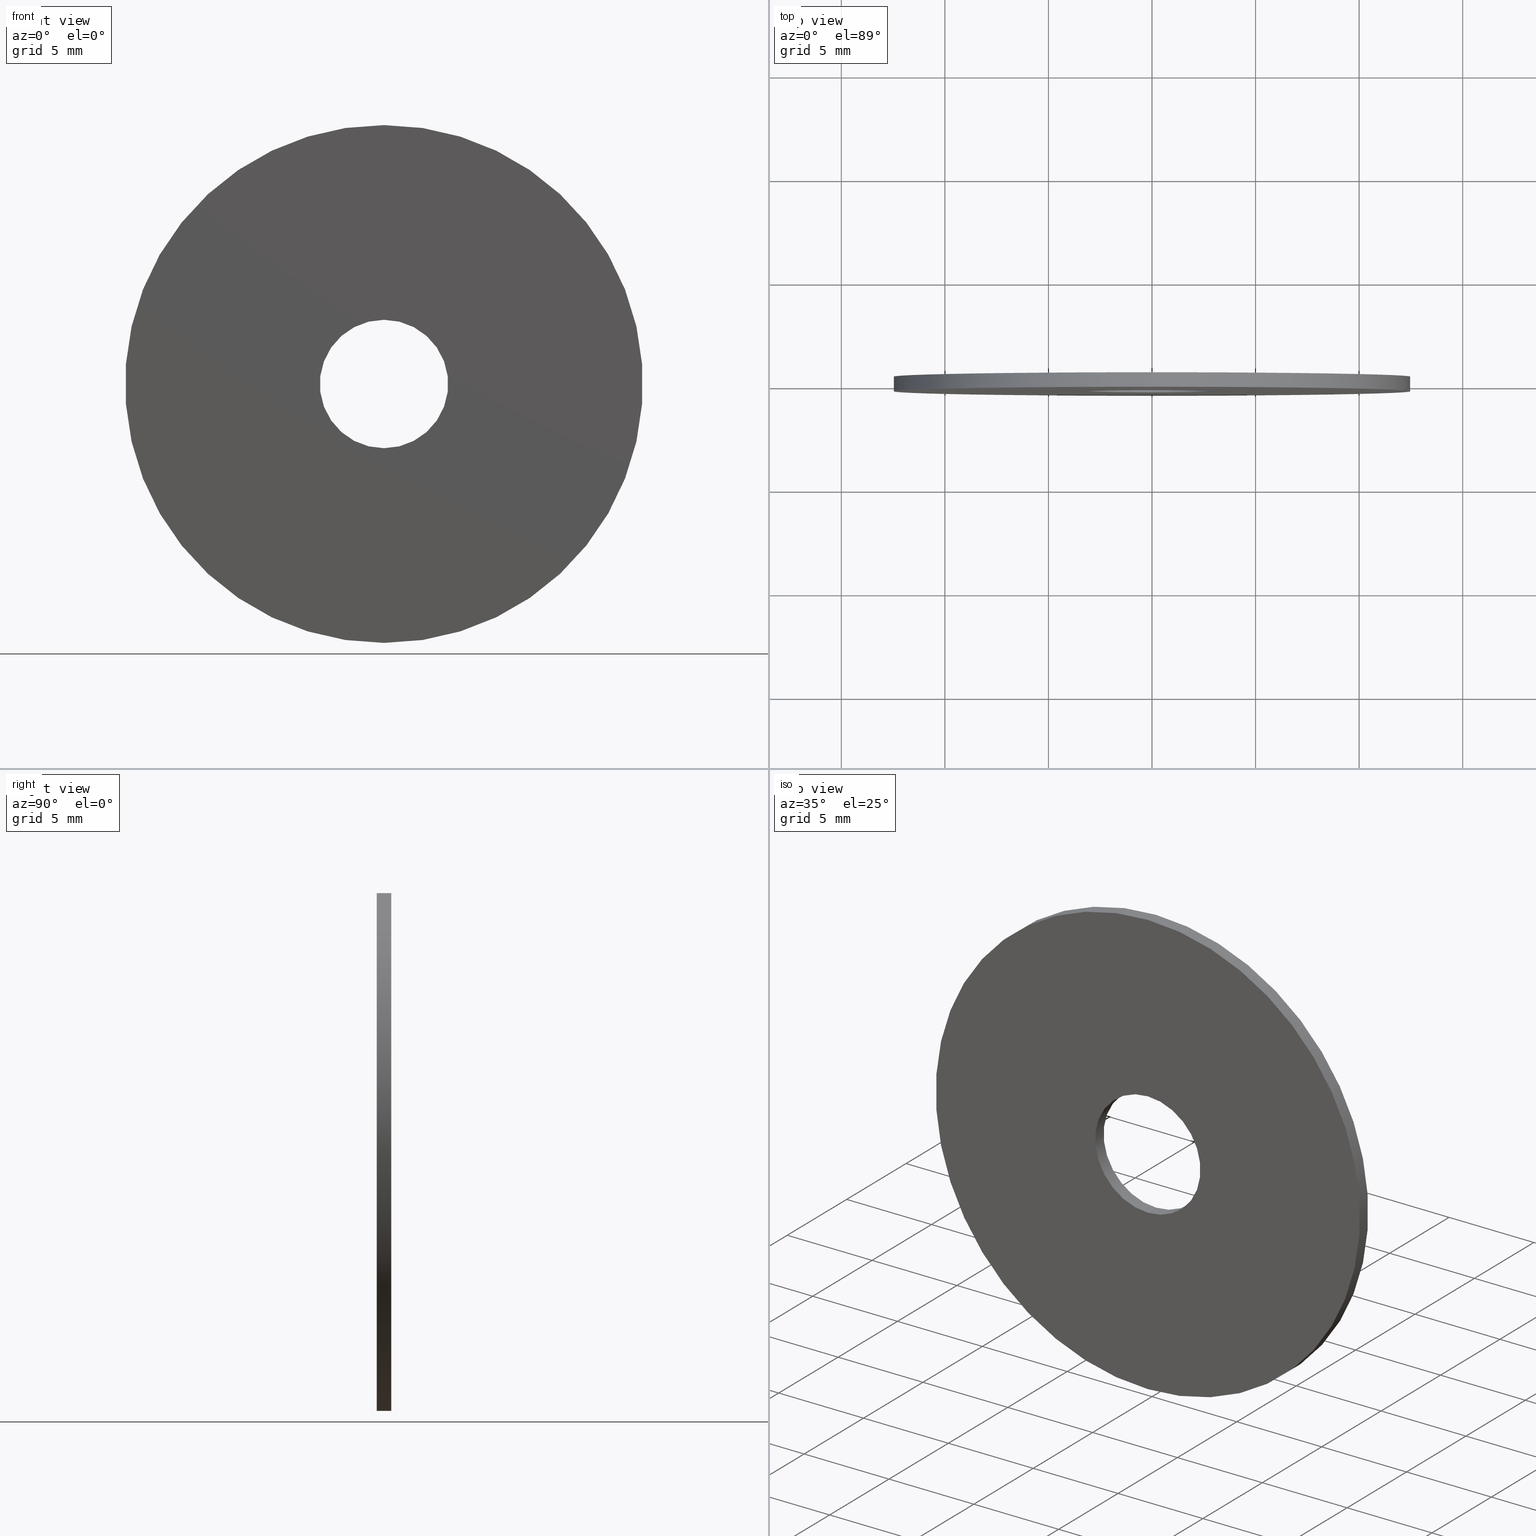
[diagram: canonical four-view strip — front | top / right | iso, engineering-drawing reading convention]
A machine part, canonical four-view strip (front | top / right | iso — engineering-drawing reading convention). The complete STEP part file that produces these views, byte-faithful:
ISO-10303-21;
HEADER;
FILE_DESCRIPTION (( 'STEP AP203' ),
    '1' );
FILE_NAME ('1.4.2.134-ZGH-25-DK0.7.STEP',
    '2024-04-06T05:14:54',
    ( '' ),
    ( '' ),
    'SwSTEP 2.0',
    'SolidWorks 2021',
    '' );
FILE_SCHEMA (( 'CONFIG_CONTROL_DESIGN' ));
ENDSEC;

DATA;
#1 = VERTEX_POINT ( 'NONE', #26 ) ;
#2 = APPROVAL_DATE_TIME ( #3, #199 ) ;
#3 = DATE_AND_TIME ( #105, #113 ) ;
#4 = AXIS2_PLACEMENT_3D ( 'NONE', #33, #182, #120 ) ;
#5 = PERSON_AND_ORGANIZATION ( #237, #140 ) ;
#6 = DIRECTION ( 'NONE',  ( 0.000000000000000000, 0.000000000000000000, 1.000000000000000000 ) ) ;
#7 = EDGE_LOOP ( 'NONE', ( #164, #124, #72, #11 ) ) ;
#8 = EDGE_CURVE ( 'NONE', #189, #126, #82, .T. ) ;
#9 = VERTEX_POINT ( 'NONE', #239 ) ;
#10 = ORIENTED_EDGE ( 'NONE', *, *, #85, .T. ) ;
#11 = ORIENTED_EDGE ( 'NONE', *, *, #95, .F. ) ;
#12 = PRODUCT_DEFINITION_FORMATION_WITH_SPECIFIED_SOURCE ( '�κ�', '', #222, .NOT_KNOWN. ) ;
#13 = DIRECTION ( 'NONE',  ( 0.000000000000000000, 1.000000000000000000, 0.000000000000000000 ) ) ;
#14 = CARTESIAN_POINT ( 'NONE',  ( 0.000000000000000000, 0.3499999999999999778, -12.50000000000000000 ) ) ;
#15 = APPROVAL_PERSON_ORGANIZATION ( #127, #226, #170 ) ;
#16 = DIRECTION ( 'NONE',  ( -0.000000000000000000, -1.000000000000000000, -0.000000000000000000 ) ) ;
#17 = APPROVAL_PERSON_ORGANIZATION ( #22, #199, #190 ) ;
#18 = DATE_AND_TIME ( #110, #118 ) ;
#19 = CC_DESIGN_DATE_AND_TIME_ASSIGNMENT ( #232, #172, ( #145 ) ) ;
#20 = AXIS2_PLACEMENT_3D ( 'NONE', #30, #13, #223 ) ;
#21 = EDGE_LOOP ( 'NONE', ( #76, #186, #97, #176 ) ) ;
#22 = PERSON_AND_ORGANIZATION ( #237, #140 ) ;
#23 = CARTESIAN_POINT ( 'NONE',  ( 1.530808498934191521E-15, -0.3499999999999999778, 12.50000000000000000 ) ) ;
#24 = DIRECTION ( 'NONE',  ( 0.000000000000000000, 0.000000000000000000, 1.000000000000000000 ) ) ;
#25 = PRODUCT_DEFINITION_SHAPE ( 'NONE', 'NONE',  #145 ) ;
#26 = CARTESIAN_POINT ( 'NONE',  ( 0.000000000000000000, -0.3499999999999999778, -12.50000000000000000 ) ) ;
#27 = CARTESIAN_POINT ( 'NONE',  ( 0.000000000000000000, -0.3499999999999999778, 0.000000000000000000 ) ) ;
#28 = FACE_OUTER_BOUND ( 'NONE', #69, .T. ) ;
#29 = AXIS2_PLACEMENT_3D ( 'NONE', #78, #204, #49 ) ;
#30 = CARTESIAN_POINT ( 'NONE',  ( 0.000000000000000000, 0.3499999999999999778, 0.000000000000000000 ) ) ;
#31 = DIRECTION ( 'NONE',  ( -0.000000000000000000, -1.000000000000000000, -0.000000000000000000 ) ) ;
#32 = EDGE_CURVE ( 'NONE', #216, #123, #84, .T. ) ;
#33 = CARTESIAN_POINT ( 'NONE',  ( 0.000000000000000000, 0.3499999999999999778, 0.000000000000000000 ) ) ;
#34 =( NAMED_UNIT ( * ) PLANE_ANGLE_UNIT ( ) SI_UNIT ( $, .RADIAN. ) );
#35 = AXIS2_PLACEMENT_3D ( 'NONE', #161, #65, #125 ) ;
#36 = CC_DESIGN_DATE_AND_TIME_ASSIGNMENT ( #18, #167, ( #234 ) ) ;
#37 = CARTESIAN_POINT ( 'NONE',  ( 0.000000000000000000, -0.3499999999999999778, 0.000000000000000000 ) ) ;
#38 = APPROVAL_PERSON_ORGANIZATION ( #151, #150, #59 ) ;
#39 = APPLICATION_CONTEXT ( 'configuration controlled 3d designs of mechanical parts and assemblies' ) ;
#40 = PERSON_AND_ORGANIZATION_ROLE ( 'classification_officer' ) ;
#41 = ADVANCED_FACE ( 'NONE', ( #231 ), #74, .F. ) ;
#42 = CARTESIAN_POINT ( 'NONE',  ( 0.000000000000000000, -0.3499999999999999778, 3.100000000000000089 ) ) ;
#43 = COORDINATED_UNIVERSAL_TIME_OFFSET ( 8, 0, .AHEAD. ) ;
#44 = VERTEX_POINT ( 'NONE', #23 ) ;
#45 = ORIENTED_EDGE ( 'NONE', *, *, #8, .F. ) ;
#46 = CC_DESIGN_APPROVAL ( #226, ( #145 ) ) ;
#47 = FACE_BOUND ( 'NONE', #157, .T. ) ;
#48 = CARTESIAN_POINT ( 'NONE',  ( 0.000000000000000000, 0.000000000000000000, 0.000000000000000000 ) ) ;
#49 = DIRECTION ( 'NONE',  ( 0.000000000000000000, 0.000000000000000000, -1.000000000000000000 ) ) ;
#50 = LOCAL_TIME ( 13, 14, 54.00000000000000000, #108 ) ;
#51 = EDGE_LOOP ( 'NONE', ( #158, #217 ) ) ;
#52 = APPROVAL_DATE_TIME ( #132, #226 ) ;
#53 = AXIS2_PLACEMENT_3D ( 'NONE', #37, #134, #24 ) ;
#54 = EDGE_CURVE ( 'NONE', #57, #9, #77, .T. ) ;
#55 = APPROVAL_STATUS ( 'not_yet_approved' ) ;
#56 = CYLINDRICAL_SURFACE ( 'NONE', #53, 3.100000000000000089 ) ;
#57 = VERTEX_POINT ( 'NONE', #94 ) ;
#58 = CLOSED_SHELL ( 'NONE', ( #63, #187, #202, #247, #144, #41 ) ) ;
#59 = APPROVAL_ROLE ( '' ) ;
#60 = DIRECTION ( 'NONE',  ( 0.000000000000000000, 0.000000000000000000, 1.000000000000000000 ) ) ;
#61 = DIRECTION ( 'NONE',  ( 0.000000000000000000, 0.000000000000000000, 1.000000000000000000 ) ) ;
#62 = CARTESIAN_POINT ( 'NONE',  ( 0.000000000000000000, 0.3499999999999999778, 0.000000000000000000 ) ) ;
#63 = ADVANCED_FACE ( 'NONE', ( #91 ), #56, .F. ) ;
#64 = VECTOR ( 'NONE', #177, 1000.000000000000000 ) ;
#65 = DIRECTION ( 'NONE',  ( 0.000000000000000000, 1.000000000000000000, 0.000000000000000000 ) ) ;
#66 = DIRECTION ( 'NONE',  ( 1.000000000000000000, 0.000000000000000000, 0.000000000000000000 ) ) ;
#67 = CYLINDRICAL_SURFACE ( 'NONE', #29, 12.50000000000000000 ) ;
#68 = LOCAL_TIME ( 13, 14, 54.00000000000000000, #88 ) ;
#69 = EDGE_LOOP ( 'NONE', ( #154, #228, #10, #87 ) ) ;
#70 = PERSON_AND_ORGANIZATION ( #237, #140 ) ;
#71 = AXIS2_PLACEMENT_3D ( 'NONE', #62, #156, #152 ) ;
#72 = ORIENTED_EDGE ( 'NONE', *, *, #32, .T. ) ;
#73 = CARTESIAN_POINT ( 'NONE',  ( 3.796405077356794918E-16, -0.3499999999999999778, -3.100000000000000089 ) ) ;
#74 = CYLINDRICAL_SURFACE ( 'NONE', #180, 3.100000000000000089 ) ;
#75 = CC_DESIGN_PERSON_AND_ORGANIZATION_ASSIGNMENT ( #213, #40, ( #234 ) ) ;
#76 = ORIENTED_EDGE ( 'NONE', *, *, #103, .F. ) ;
#77 = CIRCLE ( 'NONE', #212, 3.100000000000000089 ) ;
#78 = CARTESIAN_POINT ( 'NONE',  ( 0.000000000000000000, 0.3499999999999999778, 0.000000000000000000 ) ) ;
#79 =( LENGTH_UNIT ( ) NAMED_UNIT ( * ) SI_UNIT ( .MILLI., .METRE. ) );
#80 = APPLICATION_CONTEXT ( 'configuration controlled 3d designs of mechanical parts and assemblies' ) ;
#81 = CARTESIAN_POINT ( 'NONE',  ( 0.000000000000000000, 0.3499999999999999778, -12.50000000000000000 ) ) ;
#82 = CIRCLE ( 'NONE', #191, 12.50000000000000000 ) ;
#83 = CARTESIAN_POINT ( 'NONE',  ( 0.000000000000000000, 0.3499999999999999778, 0.000000000000000000 ) ) ;
#84 = CIRCLE ( 'NONE', #71, 3.100000000000000089 ) ;
#85 = EDGE_CURVE ( 'NONE', #44, #1, #122, .T. ) ;
#86 = CALENDAR_DATE ( 2024, 6, 4 ) ;
#87 = ORIENTED_EDGE ( 'NONE', *, *, #221, .F. ) ;
#88 = COORDINATED_UNIVERSAL_TIME_OFFSET ( 8, 0, .AHEAD. ) ;
#89 = PERSON_AND_ORGANIZATION ( #237, #140 ) ;
#90 = VECTOR ( 'NONE', #31, 1000.000000000000000 ) ;
#91 = FACE_OUTER_BOUND ( 'NONE', #7, .T. ) ;
#92 = COORDINATED_UNIVERSAL_TIME_OFFSET ( 8, 0, .AHEAD. ) ;
#93 = ORIENTED_EDGE ( 'NONE', *, *, #207, .T. ) ;
#94 = CARTESIAN_POINT ( 'NONE',  ( 0.000000000000000000, -0.3499999999999999778, 3.100000000000000089 ) ) ;
#95 = EDGE_CURVE ( 'NONE', #57, #123, #138, .T. ) ;
#96 = DIRECTION ( 'NONE',  ( -0.000000000000000000, 1.000000000000000000, -0.000000000000000000 ) ) ;
#97 = ORIENTED_EDGE ( 'NONE', *, *, #95, .T. ) ;
#98 = DIRECTION ( 'NONE',  ( 0.000000000000000000, -0.000000000000000000, 1.000000000000000000 ) ) ;
#99 = PRODUCT_RELATED_PRODUCT_CATEGORY ( 'detail', '', ( #222 ) ) ;
#100 = CC_DESIGN_APPROVAL ( #150, ( #12 ) ) ;
#101 = CARTESIAN_POINT ( 'NONE',  ( 3.796405077356794918E-16, 0.3499999999999999778, -3.100000000000000089 ) ) ;
#102 = CIRCLE ( 'NONE', #133, 3.100000000000000089 ) ;
#103 = EDGE_CURVE ( 'NONE', #9, #216, #175, .T. ) ;
#104 = ORIENTED_EDGE ( 'NONE', *, *, #85, .F. ) ;
#105 = CALENDAR_DATE ( 2024, 6, 4 ) ;
#106 = LOCAL_TIME ( 13, 14, 54.00000000000000000, #153 ) ;
#107 = CARTESIAN_POINT ( 'NONE',  ( 0.000000000000000000, -0.3499999999999999778, 0.000000000000000000 ) ) ;
#108 = COORDINATED_UNIVERSAL_TIME_OFFSET ( 8, 0, .AHEAD. ) ;
#109 = DIRECTION ( 'NONE',  ( 0.000000000000000000, 1.000000000000000000, 0.000000000000000000 ) ) ;
#110 = CALENDAR_DATE ( 2024, 6, 4 ) ;
#111 = ORIENTED_EDGE ( 'NONE', *, *, #221, .T. ) ;
#112 = EDGE_LOOP ( 'NONE', ( #196, #104 ) ) ;
#113 = LOCAL_TIME ( 13, 14, 54.00000000000000000, #92 ) ;
#114 = FACE_OUTER_BOUND ( 'NONE', #112, .T. ) ;
#115 = FACE_BOUND ( 'NONE', #51, .T. ) ;
#116 = UNCERTAINTY_MEASURE_WITH_UNIT (LENGTH_MEASURE( 1.000000000000000082E-05 ), #79, 'distance_accuracy_value', 'NONE');
#117 = CARTESIAN_POINT ( 'NONE',  ( 1.530808498934191521E-15, 0.3499999999999999778, 12.50000000000000000 ) ) ;
#118 = LOCAL_TIME ( 13, 14, 54.00000000000000000, #43 ) ;
#119 = DIRECTION ( 'NONE',  ( 0.000000000000000000, -0.000000000000000000, 1.000000000000000000 ) ) ;
#120 = DIRECTION ( 'NONE',  ( 0.000000000000000000, 0.000000000000000000, -1.000000000000000000 ) ) ;
#121 = CC_DESIGN_PERSON_AND_ORGANIZATION_ASSIGNMENT ( #89, #209, ( #12 ) ) ;
#122 = CIRCLE ( 'NONE', #197, 12.50000000000000000 ) ;
#123 = VERTEX_POINT ( 'NONE', #235 ) ;
#124 = ORIENTED_EDGE ( 'NONE', *, *, #103, .T. ) ;
#125 = DIRECTION ( 'NONE',  ( 0.000000000000000000, 0.000000000000000000, 1.000000000000000000 ) ) ;
#126 = VERTEX_POINT ( 'NONE', #219 ) ;
#127 = PERSON_AND_ORGANIZATION ( #237, #140 ) ;
#128 = CC_DESIGN_SECURITY_CLASSIFICATION ( #234, ( #12 ) ) ;
#129 = ADVANCED_BREP_SHAPE_REPRESENTATION ( '1.4.2.134-ZGH-25-DK0.7', ( #147, #248 ), #159 ) ;
#130 = CALENDAR_DATE ( 2024, 6, 4 ) ;
#131 = EDGE_LOOP ( 'NONE', ( #139, #45, #111, #93 ) ) ;
#132 = DATE_AND_TIME ( #149, #50 ) ;
#133 = AXIS2_PLACEMENT_3D ( 'NONE', #166, #163, #225 ) ;
#134 = DIRECTION ( 'NONE',  ( -0.000000000000000000, 1.000000000000000000, -0.000000000000000000 ) ) ;
#135 = APPROVAL_STATUS ( 'not_yet_approved' ) ;
#136 = CC_DESIGN_PERSON_AND_ORGANIZATION_ASSIGNMENT ( #215, #168, ( #12 ) ) ;
#137 = DIRECTION ( 'NONE',  ( 0.000000000000000000, 0.000000000000000000, 1.000000000000000000 ) ) ;
#138 = LINE ( 'NONE', #42, #171 ) ;
#139 = ORIENTED_EDGE ( 'NONE', *, *, #218, .F. ) ;
#140 = ORGANIZATION ( 'δָ��', 'δָ��', '' ) ;
#141 = MECHANICAL_CONTEXT ( 'NONE', #80, 'mechanical' ) ;
#142 = DIRECTION ( 'NONE',  ( 0.000000000000000000, 1.000000000000000000, 0.000000000000000000 ) ) ;
#143 = CYLINDRICAL_SURFACE ( 'NONE', #4, 12.50000000000000000 ) ;
#144 = ADVANCED_FACE ( 'NONE', ( #47, #114 ), #200, .F. ) ;
#145 = PRODUCT_DEFINITION ( 'δ֪', '', #12, #244 ) ;
#146 = AXIS2_PLACEMENT_3D ( 'NONE', #160, #201, #181 ) ;
#147 = MANIFOLD_SOLID_BREP ( '�г�-����3', #58 ) ;
#148 = PERSON_AND_ORGANIZATION_ROLE ( 'creator' ) ;
#149 = CALENDAR_DATE ( 2024, 6, 4 ) ;
#150 = APPROVAL ( #135, 'δָ��' ) ;
#151 = PERSON_AND_ORGANIZATION ( #237, #140 ) ;
#152 = DIRECTION ( 'NONE',  ( 0.000000000000000000, 0.000000000000000000, 1.000000000000000000 ) ) ;
#153 = COORDINATED_UNIVERSAL_TIME_OFFSET ( 8, 0, .AHEAD. ) ;
#154 = ORIENTED_EDGE ( 'NONE', *, *, #242, .F. ) ;
#155 = CC_DESIGN_APPROVAL ( #199, ( #234 ) ) ;
#156 = DIRECTION ( 'NONE',  ( 0.000000000000000000, 1.000000000000000000, 0.000000000000000000 ) ) ;
#157 = EDGE_LOOP ( 'NONE', ( #206, #214 ) ) ;
#158 = ORIENTED_EDGE ( 'NONE', *, *, #236, .F. ) ;
#159 =( GEOMETRIC_REPRESENTATION_CONTEXT ( 3 ) GLOBAL_UNCERTAINTY_ASSIGNED_CONTEXT ( ( #116 ) ) GLOBAL_UNIT_ASSIGNED_CONTEXT ( ( #79, #34, #249 ) ) REPRESENTATION_CONTEXT ( 'NONE', 'WORKASPACE' ) );
#160 = CARTESIAN_POINT ( 'NONE',  ( 0.000000000000000000, 0.3499999999999999778, 0.000000000000000000 ) ) ;
#161 = CARTESIAN_POINT ( 'NONE',  ( 0.000000000000000000, -0.3499999999999999778, 0.000000000000000000 ) ) ;
#162 = CC_DESIGN_PERSON_AND_ORGANIZATION_ASSIGNMENT ( #70, #148, ( #145 ) ) ;
#163 = DIRECTION ( 'NONE',  ( 0.000000000000000000, 1.000000000000000000, 0.000000000000000000 ) ) ;
#164 = ORIENTED_EDGE ( 'NONE', *, *, #169, .F. ) ;
#165 = CIRCLE ( 'NONE', #35, 12.50000000000000000 ) ;
#166 = CARTESIAN_POINT ( 'NONE',  ( 0.000000000000000000, -0.3499999999999999778, 0.000000000000000000 ) ) ;
#167 = DATE_TIME_ROLE ( 'classification_date' ) ;
#168 = PERSON_AND_ORGANIZATION_ROLE ( 'design_supplier' ) ;
#169 = EDGE_CURVE ( 'NONE', #9, #57, #102, .T. ) ;
#170 = APPROVAL_ROLE ( '' ) ;
#171 = VECTOR ( 'NONE', #96, 1000.000000000000000 ) ;
#172 = DATE_TIME_ROLE ( 'creation_date' ) ;
#173 = CARTESIAN_POINT ( 'NONE',  ( 0.000000000000000000, -0.3499999999999999778, 0.000000000000000000 ) ) ;
#174 = SHAPE_DEFINITION_REPRESENTATION ( #25, #129 ) ;
#175 = LINE ( 'NONE', #73, #64 ) ;
#176 = ORIENTED_EDGE ( 'NONE', *, *, #236, .T. ) ;
#177 = DIRECTION ( 'NONE',  ( -0.000000000000000000, 1.000000000000000000, -0.000000000000000000 ) ) ;
#178 = CARTESIAN_POINT ( 'NONE',  ( 0.000000000000000000, 0.3499999999999999778, 0.000000000000000000 ) ) ;
#179 = APPLICATION_PROTOCOL_DEFINITION ( 'international standard', 'config_control_design', 1994, #80 ) ;
#180 = AXIS2_PLACEMENT_3D ( 'NONE', #107, #238, #137 ) ;
#181 = DIRECTION ( 'NONE',  ( 0.000000000000000000, 0.000000000000000000, 1.000000000000000000 ) ) ;
#182 = DIRECTION ( 'NONE',  ( -0.000000000000000000, -1.000000000000000000, -0.000000000000000000 ) ) ;
#183 = VECTOR ( 'NONE', #16, 1000.000000000000000 ) ;
#184 = ORIENTED_EDGE ( 'NONE', *, *, #242, .T. ) ;
#185 = LINE ( 'NONE', #117, #183 ) ;
#186 = ORIENTED_EDGE ( 'NONE', *, *, #54, .F. ) ;
#187 = ADVANCED_FACE ( 'NONE', ( #28 ), #143, .T. ) ;
#188 = SECURITY_CLASSIFICATION_LEVEL ( 'unclassified' ) ;
#189 = VERTEX_POINT ( 'NONE', #14 ) ;
#190 = APPROVAL_ROLE ( '' ) ;
#191 = AXIS2_PLACEMENT_3D ( 'NONE', #178, #109, #60 ) ;
#192 = CC_DESIGN_PERSON_AND_ORGANIZATION_ASSIGNMENT ( #5, #208, ( #222 ) ) ;
#193 = CARTESIAN_POINT ( 'NONE',  ( 0.000000000000000000, -0.3499999999999999778, 0.000000000000000000 ) ) ;
#194 = APPROVAL_DATE_TIME ( #210, #150 ) ;
#195 = DIRECTION ( 'NONE',  ( 0.000000000000000000, 1.000000000000000000, 0.000000000000000000 ) ) ;
#196 = ORIENTED_EDGE ( 'NONE', *, *, #207, .F. ) ;
#197 = AXIS2_PLACEMENT_3D ( 'NONE', #173, #195, #6 ) ;
#198 = ORIENTED_EDGE ( 'NONE', *, *, #8, .T. ) ;
#199 = APPROVAL ( #55, 'δָ��' ) ;
#200 = PLANE ( 'NONE',  #227 ) ;
#201 = DIRECTION ( 'NONE',  ( 0.000000000000000000, 1.000000000000000000, 0.000000000000000000 ) ) ;
#202 = ADVANCED_FACE ( 'NONE', ( #245 ), #67, .T. ) ;
#203 = DIRECTION ( 'NONE',  ( 0.000000000000000000, 1.000000000000000000, 0.000000000000000000 ) ) ;
#204 = DIRECTION ( 'NONE',  ( -0.000000000000000000, -1.000000000000000000, -0.000000000000000000 ) ) ;
#205 = LINE ( 'NONE', #81, #90 ) ;
#206 = ORIENTED_EDGE ( 'NONE', *, *, #54, .T. ) ;
#207 = EDGE_CURVE ( 'NONE', #1, #44, #165, .T. ) ;
#208 = PERSON_AND_ORGANIZATION_ROLE ( 'design_owner' ) ;
#209 = PERSON_AND_ORGANIZATION_ROLE ( 'creator' ) ;
#210 = DATE_AND_TIME ( #86, #68 ) ;
#211 = DIRECTION ( 'NONE',  ( 0.000000000000000000, 1.000000000000000000, 0.000000000000000000 ) ) ;
#212 = AXIS2_PLACEMENT_3D ( 'NONE', #193, #211, #61 ) ;
#213 = PERSON_AND_ORGANIZATION ( #237, #140 ) ;
#214 = ORIENTED_EDGE ( 'NONE', *, *, #169, .T. ) ;
#215 = PERSON_AND_ORGANIZATION ( #237, #140 ) ;
#216 = VERTEX_POINT ( 'NONE', #101 ) ;
#217 = ORIENTED_EDGE ( 'NONE', *, *, #32, .F. ) ;
#218 = EDGE_CURVE ( 'NONE', #126, #44, #185, .T. ) ;
#219 = CARTESIAN_POINT ( 'NONE',  ( 1.530808498934191521E-15, 0.3499999999999999778, 12.50000000000000000 ) ) ;
#220 = FACE_OUTER_BOUND ( 'NONE', #233, .T. ) ;
#221 = EDGE_CURVE ( 'NONE', #189, #1, #205, .T. ) ;
#222 = PRODUCT ( '1.4.2.134-ZGH-25-DK0.7', '1.4.2.134-ZGH-25-DK0.7', '', ( #141 ) ) ;
#223 = DIRECTION ( 'NONE',  ( 0.000000000000000000, 0.000000000000000000, 1.000000000000000000 ) ) ;
#224 = AXIS2_PLACEMENT_3D ( 'NONE', #83, #203, #98 ) ;
#225 = DIRECTION ( 'NONE',  ( 0.000000000000000000, 0.000000000000000000, 1.000000000000000000 ) ) ;
#226 = APPROVAL ( #229, 'δָ��' ) ;
#227 = AXIS2_PLACEMENT_3D ( 'NONE', #27, #142, #119 ) ;
#228 = ORIENTED_EDGE ( 'NONE', *, *, #218, .T. ) ;
#229 = APPROVAL_STATUS ( 'not_yet_approved' ) ;
#230 = APPLICATION_PROTOCOL_DEFINITION ( 'international standard', 'config_control_design', 1994, #39 ) ;
#231 = FACE_OUTER_BOUND ( 'NONE', #21, .T. ) ;
#232 = DATE_AND_TIME ( #130, #106 ) ;
#233 = EDGE_LOOP ( 'NONE', ( #198, #184 ) ) ;
#234 = SECURITY_CLASSIFICATION ( '', '', #188 ) ;
#235 = CARTESIAN_POINT ( 'NONE',  ( 0.000000000000000000, 0.3499999999999999778, 3.100000000000000089 ) ) ;
#236 = EDGE_CURVE ( 'NONE', #123, #216, #240, .T. ) ;
#237 = PERSON ( 'δָ��', 'δָ��', 'δָ��', ('δָ��'), ('δָ��'), ('δָ��') ) ;
#238 = DIRECTION ( 'NONE',  ( -0.000000000000000000, 1.000000000000000000, -0.000000000000000000 ) ) ;
#239 = CARTESIAN_POINT ( 'NONE',  ( 3.796405077356794918E-16, -0.3499999999999999778, -3.100000000000000089 ) ) ;
#240 = CIRCLE ( 'NONE', #146, 3.100000000000000089 ) ;
#241 = PLANE ( 'NONE',  #224 ) ;
#242 = EDGE_CURVE ( 'NONE', #126, #189, #246, .T. ) ;
#243 = DIRECTION ( 'NONE',  ( 0.000000000000000000, 0.000000000000000000, 1.000000000000000000 ) ) ;
#244 = DESIGN_CONTEXT ( 'detailed design', #39, 'design' ) ;
#245 = FACE_OUTER_BOUND ( 'NONE', #131, .T. ) ;
#246 = CIRCLE ( 'NONE', #20, 12.50000000000000000 ) ;
#247 = ADVANCED_FACE ( 'NONE', ( #115, #220 ), #241, .T. ) ;
#248 = AXIS2_PLACEMENT_3D ( 'NONE', #48, #243, #66 ) ;
#249 =( NAMED_UNIT ( * ) SI_UNIT ( $, .STERADIAN. ) SOLID_ANGLE_UNIT ( ) );
ENDSEC;
END-ISO-10303-21;
